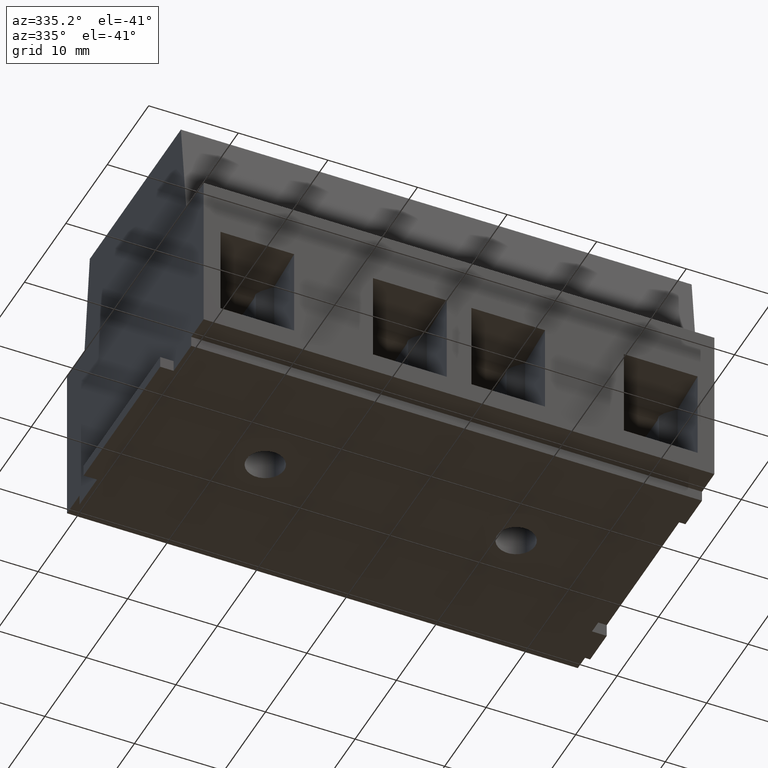
[diagram: clean part render]
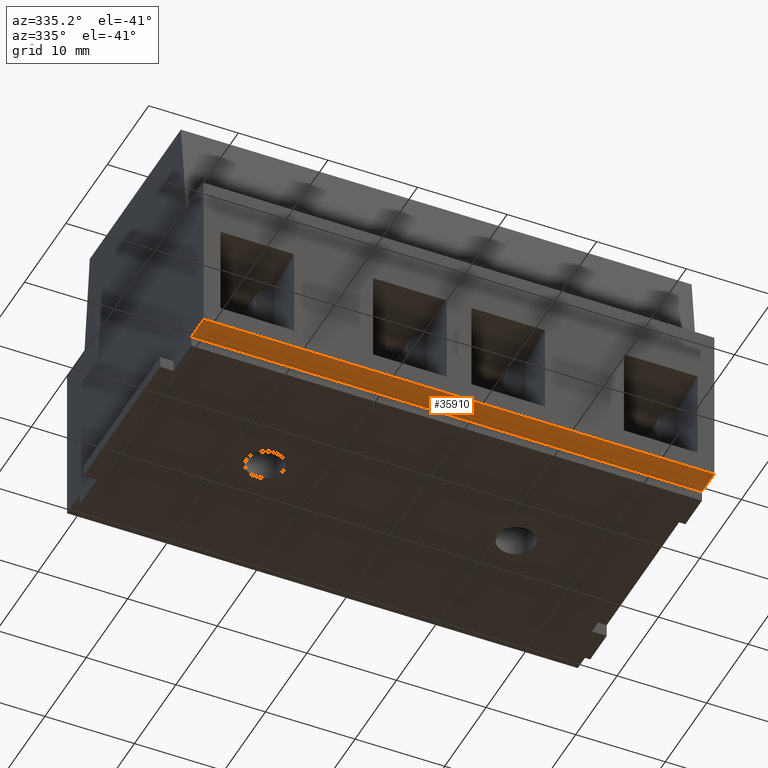
[diagram: same view with one face highlighted and labeled with its STEP entity id]
A machine part, auxiliary view. The second image highlights one B-rep face of the part: STEP entity #35910.
In plain terms, the highlighted planar face has unit normal (0, 0, 1).
Its self-contained STEP definition (entity closure, byte-faithful):
#35320=CARTESIAN_POINT('',(40.9713182031141,-17.9158790304453,58.));
#35330=VERTEX_POINT('',#35320);
#35360=CARTESIAN_POINT('',(40.9713182031141,-17.9158790304453,29.));
#35370=DIRECTION('',(0.,0.,1.));
#35380=VECTOR('',#35370,1.);
#35390=LINE('',#35360,#35380);
#35400=CARTESIAN_POINT('',(40.9713182031141,-17.9158790304453,
1.00000000000001));
#35410=VERTEX_POINT('',#35400);
#35420=EDGE_CURVE('',#35410,#35330,#35390,.T.);
#35610=CARTESIAN_POINT('',(40.9713182031141,-17.9158790304453,29.));
#35620=DIRECTION('',(1.,0.,0.));
#35630=DIRECTION('',(0.,1.,0.));
#35640=AXIS2_PLACEMENT_3D('',#35610,#35620,#35630);
#35650=PLANE('',#35640);
#35660=CARTESIAN_POINT('',(40.9713182031141,-4.41587903044529,58.));
#35670=DIRECTION('',(0.,1.,0.));
#35680=VECTOR('',#35670,1.);
#35690=LINE('',#35660,#35680);
#35700=CARTESIAN_POINT('',(40.9713182031141,-20.9158790304453,58.));
#35710=VERTEX_POINT('',#35700);
#35720=EDGE_CURVE('',#35710,#35330,#35690,.T.);
#35730=ORIENTED_EDGE('',*,*,#35720,.T.);
#35740=CARTESIAN_POINT('',(40.9713182031141,-20.9158790304453,29.));
#35750=DIRECTION('',(0.,0.,1.));
#35760=VECTOR('',#35750,1.);
#35770=LINE('',#35740,#35760);
#35780=CARTESIAN_POINT('',(40.9713182031141,-20.9158790304453,
1.00000000000001));
#35790=VERTEX_POINT('',#35780);
#35800=EDGE_CURVE('',#35790,#35710,#35770,.T.);
#35810=ORIENTED_EDGE('',*,*,#35800,.T.);
#35820=CARTESIAN_POINT('',(40.9713182031141,-4.41587903044529,
1.00000000000001));
#35830=DIRECTION('',(0.,-1.,0.));
#35840=VECTOR('',#35830,1.);
#35850=LINE('',#35820,#35840);
#35860=EDGE_CURVE('',#35410,#35790,#35850,.T.);
#35870=ORIENTED_EDGE('',*,*,#35860,.T.);
#35880=ORIENTED_EDGE('',*,*,#35420,.F.);
#35890=EDGE_LOOP('',(#35880,#35870,#35810,#35730));
#35900=FACE_OUTER_BOUND('',#35890,.T.);
#35910=ADVANCED_FACE('',(#35900),#35650,.F.);